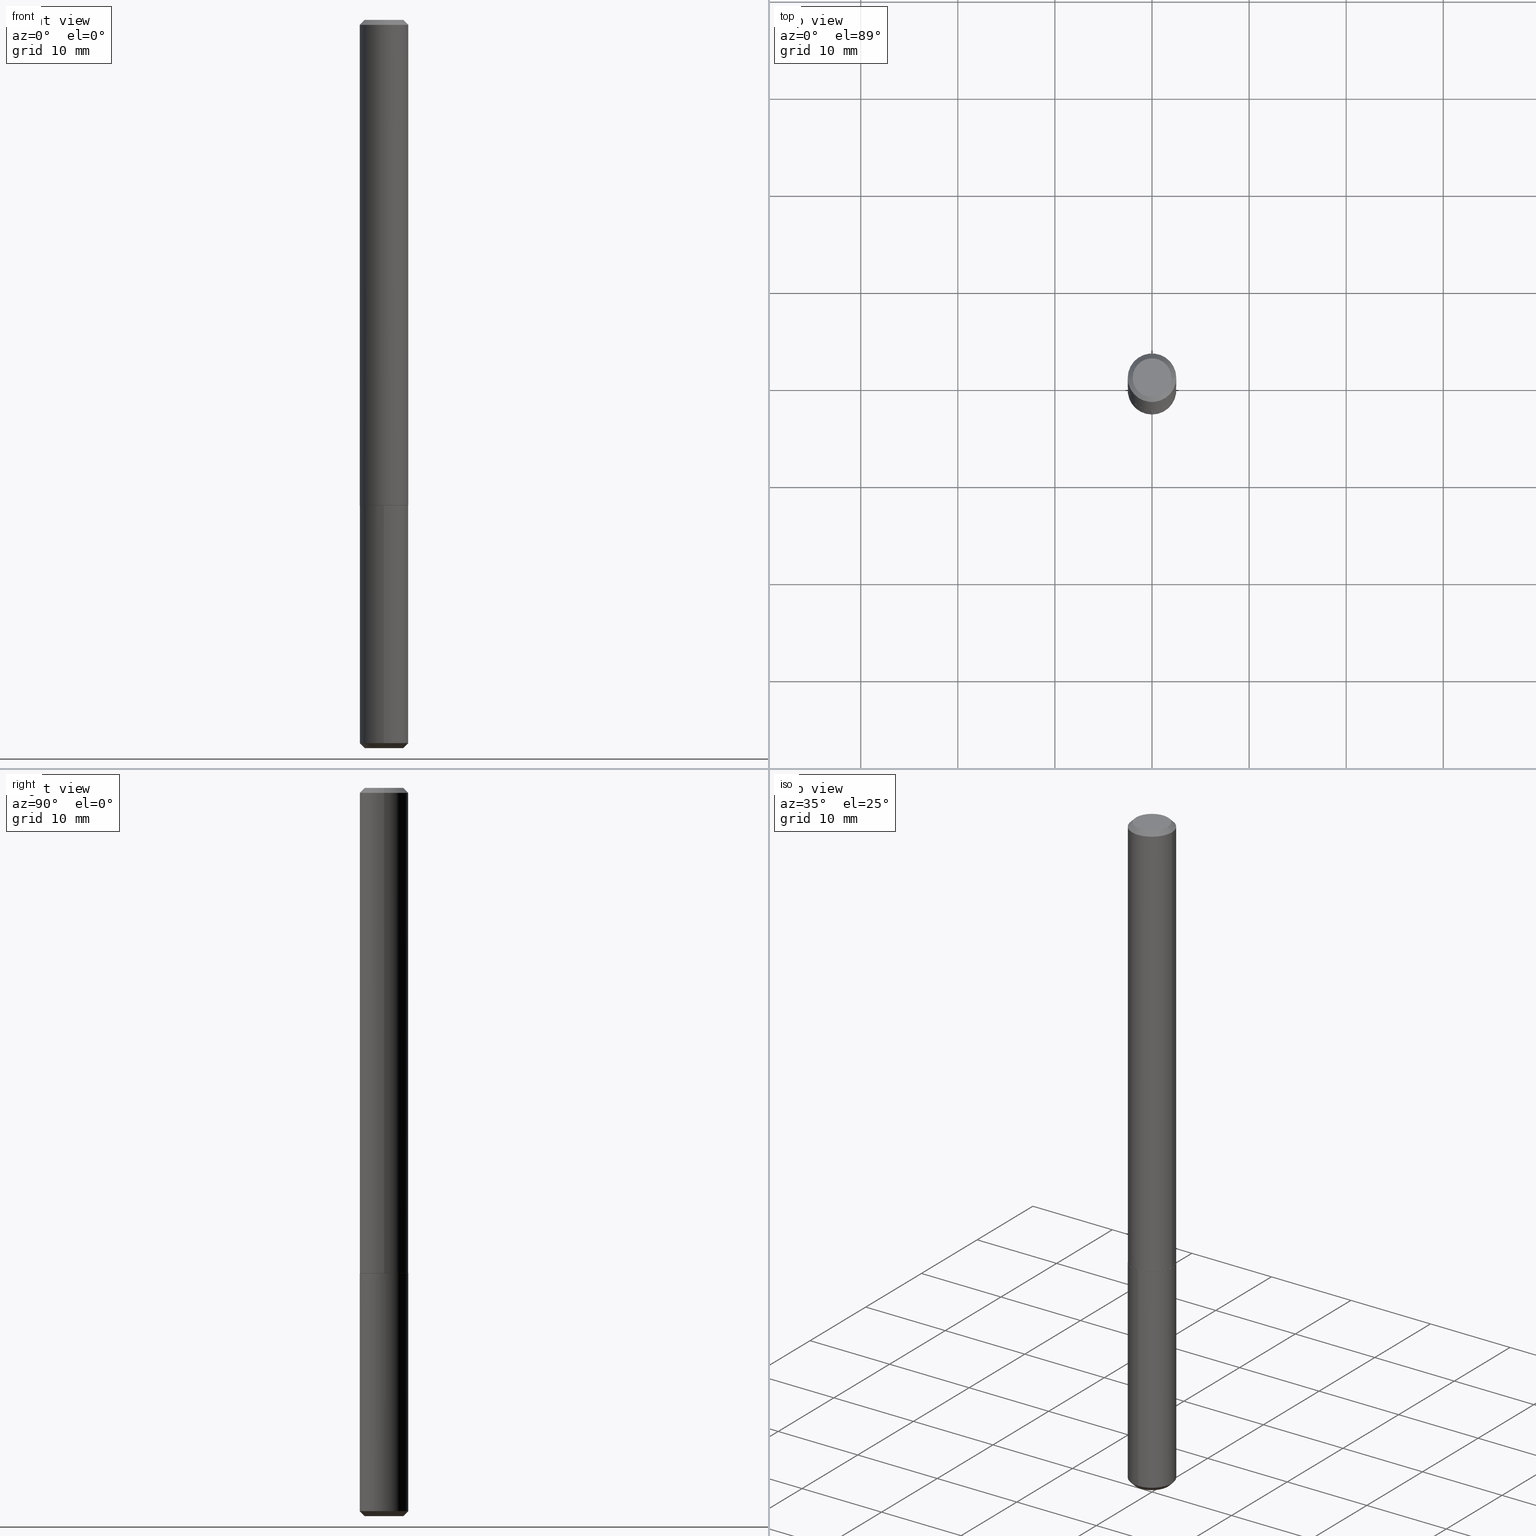
[diagram: canonical four-view strip — front | top / right | iso, engineering-drawing reading convention]
A machine part, canonical four-view strip (front | top / right | iso — engineering-drawing reading convention). The complete STEP part file that produces these views, byte-faithful:
ISO-10303-21;
HEADER;
FILE_DESCRIPTION (( 'STEP AP203' ),
    '1' );
FILE_NAME ('81017.STEP',
    '2024-04-19T13:36:24',
    ( '' ),
    ( '' ),
    'SwSTEP 2.0',
    'SolidWorks 2023',
    '' );
FILE_SCHEMA (( 'CONFIG_CONTROL_DESIGN' ));
ENDSEC;

DATA;
#1 = CALENDAR_DATE ( 2024, 19, 4 ) ;
#2 = LINE ( 'NONE', #98, #306 ) ;
#3 = CALENDAR_DATE ( 2024, 19, 4 ) ;
#4 = DIRECTION ( 'NONE',  ( -2.445360249500017247E-29, 3.491636798194899149E-15, 1.000000000000000000 ) ) ;
#5 = AXIS2_PLACEMENT_3D ( 'NONE', #352, #166, #332 ) ;
#6 = ADVANCED_FACE ( 'NONE', ( #128 ), #313, .T. ) ;
#7 = ORIENTED_EDGE ( 'NONE', *, *, #136, .F. ) ;
#8 = DIRECTION ( 'NONE',  ( 1.000000000000000000, -6.982962677686268288E-15, 0.000000000000000000 ) ) ;
#9 = CARTESIAN_POINT ( 'NONE',  ( -0.09844999999999999585, 6.176430488413494591E-16, -0.02000000000000014960 ) ) ;
#10 = CARTESIAN_POINT ( 'NONE',  ( 2.934938834991149716E-47, -4.190314816979048378E-33, -1.200153863164410111E-18 ) ) ;
#11 = DIRECTION ( 'NONE',  ( -2.445360249500017527E-29, 3.491636798194899149E-15, 1.000000000000000000 ) ) ;
#12 = CARTESIAN_POINT ( 'NONE',  ( -0.09795000000000038398, -6.174355178661599350E-15, -1.968499999999999694 ) ) ;
#13 = VERTEX_POINT ( 'NONE', #63 ) ;
#14 = CARTESIAN_POINT ( 'NONE',  ( -5.478134220644152620E-16, -0.07845000000001030316, -2.952799999999998981 ) ) ;
#15 = DIRECTION ( 'NONE',  ( -2.445360249500017527E-29, 3.491636798194899149E-15, 1.000000000000000000 ) ) ;
#16 = VERTEX_POINT ( 'NONE', #132 ) ;
#17 = CALENDAR_DATE ( 2024, 19, 4 ) ;
#18 = EDGE_CURVE ( 'NONE', #194, #138, #181, .T. ) ;
#19 = DIRECTION ( 'NONE',  ( -2.445360249500017527E-29, 3.491636798194899149E-15, 1.000000000000000000 ) ) ;
#20 = DIRECTION ( 'NONE',  ( 2.445360249500016966E-29, -3.491636798194899149E-15, -1.000000000000000000 ) ) ;
#21 = AXIS2_PLACEMENT_3D ( 'NONE', #336, #179, #147 ) ;
#22 = EDGE_CURVE ( 'NONE', #101, #322, #2, .T. ) ;
#23 = CONICAL_SURFACE ( 'NONE', #310, 0.09845000000000023177, 0.7853981633973970977 ) ;
#24 = CARTESIAN_POINT ( 'NONE',  ( 0.09845000000000023177, -7.558707950461525130E-15, -1.967999999999999972 ) ) ;
#25 = AXIS2_PLACEMENT_3D ( 'NONE', #35, #395, #390 ) ;
#26 = AXIS2_PLACEMENT_3D ( 'NONE', #140, #347, #325 ) ;
#27 = CARTESIAN_POINT ( 'NONE',  ( 7.220873438558306981E-29, -1.030979911597597060E-14, -2.952799999999999869 ) ) ;
#28 = ORIENTED_EDGE ( 'NONE', *, *, #91, .F. ) ;
#29 = APPROVAL ( #318, 'UNSPECIFIED' ) ;
#30 = AXIS2_PLACEMENT_3D ( 'NONE', #256, #363, #109 ) ;
#31 = ORIENTED_EDGE ( 'NONE', *, *, #22, .F. ) ;
#32 = SHAPE_DEFINITION_REPRESENTATION ( #354, #377 ) ;
#33 = APPROVAL_ROLE ( '' ) ;
#34 = CARTESIAN_POINT ( 'NONE',  ( 1.467469417495574858E-47, -2.095157408489524189E-33, -6.000769315822050554E-19 ) ) ;
#35 = CARTESIAN_POINT ( 'NONE',  ( 0.000000000000000000, 0.000000000000000000, 0.000000000000000000 ) ) ;
#36 = ORIENTED_EDGE ( 'NONE', *, *, #38, .F. ) ;
#37 = CONICAL_SURFACE ( 'NONE', #96, 0.09844999999999999585, 0.7853981633974447263 ) ;
#38 = EDGE_CURVE ( 'NONE', #393, #216, #82, .T. ) ;
#39 = DIRECTION ( 'NONE',  ( -2.445468806185136597E-29, 3.491481338843145583E-15, 1.000000000000000000 ) ) ;
#40 = ORIENTED_EDGE ( 'NONE', *, *, #121, .F. ) ;
#41 = CARTESIAN_POINT ( 'NONE',  ( 7.171966233568306776E-29, -1.023996638001207320E-14, -2.932799999999999851 ) ) ;
#42 = CARTESIAN_POINT ( 'NONE',  ( 4.813905344975440714E-29, -6.872981015512730918E-15, -1.968499999999999694 ) ) ;
#43 = PLANE ( 'NONE',  #105 ) ;
#44 = ORIENTED_EDGE ( 'NONE', *, *, #324, .F. ) ;
#45 = CARTESIAN_POINT ( 'NONE',  ( 6.995293233558916717E-16, 0.09844999999998994833, -2.932800000000000296 ) ) ;
#46 = FACE_OUTER_BOUND ( 'NONE', #389, .T. ) ;
#47 = EDGE_CURVE ( 'NONE', #16, #59, #300, .T. ) ;
#48 = COORDINATED_UNIVERSAL_TIME_OFFSET ( 5, 0, .BEHIND. ) ;
#49 = CIRCLE ( 'NONE', #334, 0.09844999999999999585 ) ;
#50 = CC_DESIGN_SECURITY_CLASSIFICATION ( #174, ( #232 ) ) ;
#51 = CALENDAR_DATE ( 2024, 19, 4 ) ;
#52 = EDGE_CURVE ( 'NONE', #342, #216, #221, .T. ) ;
#53 = AXIS2_PLACEMENT_3D ( 'NONE', #297, #137, #376 ) ;
#54 = LOCAL_TIME ( 9, 36, 24.00000000000000000, #87 ) ;
#55 = DIRECTION ( 'NONE',  ( -6.982962677686265922E-15, -1.000000000000000000, 3.491636798194899149E-15 ) ) ;
#56 = LOCAL_TIME ( 9, 36, 24.00000000000000000, #190 ) ;
#57 = ORIENTED_EDGE ( 'NONE', *, *, #52, .T. ) ;
#58 = EDGE_CURVE ( 'NONE', #138, #120, #185, .T. ) ;
#59 = VERTEX_POINT ( 'NONE', #307 ) ;
#60 = DATE_AND_TIME ( #288, #56 ) ;
#61 = CONICAL_SURFACE ( 'NONE', #86, 0.09844999999999999585, 0.7853981633974538301 ) ;
#62 = APPROVAL_PERSON_ORGANIZATION ( #222, #29, #33 ) ;
#63 = CARTESIAN_POINT ( 'NONE',  ( -6.874726756181396890E-16, -0.09845000000001002949, -2.932799999999999407 ) ) ;
#64 = SECURITY_CLASSIFICATION_LEVEL ( 'unclassified' ) ;
#65 =( LENGTH_UNIT ( ) NAMED_UNIT ( * ) SI_UNIT ( $, .METRE. ) );
#66 = ORIENTED_EDGE ( 'NONE', *, *, #129, .T. ) ;
#67 = APPROVAL_DATE_TIME ( #270, #182 ) ;
#68 = ORIENTED_EDGE ( 'NONE', *, *, #210, .T. ) ;
#69 = AXIS2_PLACEMENT_3D ( 'NONE', #27, #184, #189 ) ;
#70 = CARTESIAN_POINT ( 'NONE',  ( 7.171966233568306776E-29, -1.023996638001207320E-14, -2.932799999999999851 ) ) ;
#71 = FACE_OUTER_BOUND ( 'NONE', #227, .T. ) ;
#72 = CARTESIAN_POINT ( 'NONE',  ( 0.09795000000000038398, -7.556962209792104416E-15, -1.968499999999999694 ) ) ;
#73 = EDGE_LOOP ( 'NONE', ( #326, #125, #66, #236 ) ) ;
#74 = APPROVAL_ROLE ( '' ) ;
#75 = FACE_OUTER_BOUND ( 'NONE', #206, .T. ) ;
#76 = CC_DESIGN_PERSON_AND_ORGANIZATION_ASSIGNMENT ( #286, #346, ( #174 ) ) ;
#77 = FACE_OUTER_BOUND ( 'NONE', #145, .T. ) ;
#78 = CARTESIAN_POINT ( 'NONE',  ( -0.07844999999999999196, 5.827282354529185989E-16, -1.200153863168363275E-18 ) ) ;
#79 = APPROVAL_STATUS ( 'not_yet_approved' ) ;
#80 = FACE_OUTER_BOUND ( 'NONE', #351, .T. ) ;
#81 = APPROVAL_DATE_TIME ( #278, #291 ) ;
#82 = LINE ( 'NONE', #9, #357 ) ;
#83 = VECTOR ( 'NONE', #226, 39.37007874015748143 ) ;
#84 = ORGANIZATION ( 'UNSPECIFIED', 'UNSPECIFIED', '' ) ;
#85 = DIRECTION ( 'NONE',  ( 2.445468806185136597E-29, -3.491481338843145583E-15, -1.000000000000000000 ) ) ;
#86 = AXIS2_PLACEMENT_3D ( 'NONE', #41, #315, #392 ) ;
#87 = COORDINATED_UNIVERSAL_TIME_OFFSET ( 5, 0, .BEHIND. ) ;
#88 = EDGE_CURVE ( 'NONE', #100, #92, #247, .T. ) ;
#89 = AXIS2_PLACEMENT_3D ( 'NONE', #114, #11, #244 ) ;
#90 = EDGE_LOOP ( 'NONE', ( #126, #289, #401, #387 ) ) ;
#91 = EDGE_CURVE ( 'NONE', #138, #194, #130, .T. ) ;
#92 = VERTEX_POINT ( 'NONE', #231 ) ;
#93 = DATE_TIME_ROLE ( 'creation_date' ) ;
#94 = ORIENTED_EDGE ( 'NONE', *, *, #18, .T. ) ;
#95 = PERSON_AND_ORGANIZATION ( #106, #84 ) ;
#96 = AXIS2_PLACEMENT_3D ( 'NONE', #399, #102, #203 ) ;
#97 = EDGE_LOOP ( 'NONE', ( #122, #7, #281, #110 ) ) ;
#98 = CARTESIAN_POINT ( 'NONE',  ( -0.09845000000000023177, -6.171705951487488938E-15, -1.967999999999999972 ) ) ;
#99 =( NAMED_UNIT ( * ) PLANE_ANGLE_UNIT ( ) SI_UNIT ( $, .RADIAN. ) );
#100 = VERTEX_POINT ( 'NONE', #72 ) ;
#101 = VERTEX_POINT ( 'NONE', #12 ) ;
#102 = DIRECTION ( 'NONE',  ( 2.445468806185136597E-29, -3.491481338843145583E-15, -1.000000000000000000 ) ) ;
#103 = DIRECTION ( 'NONE',  ( 2.438088387897960049E-29, -3.491481338843145188E-15, -1.000000000000000000 ) ) ;
#104 = VECTOR ( 'NONE', #271, 39.37007874015748143 ) ;
#105 = AXIS2_PLACEMENT_3D ( 'NONE', #34, #103, #350 ) ;
#106 = PERSON ( 'UNSPECIFIED', 'UNSPECIFIED', 'UNSPECIFIED', ('UNSPECIFIED'), ('UNSPECIFIED'), ('UNSPECIFIED') ) ;
#107 = CC_DESIGN_DATE_AND_TIME_ASSIGNMENT ( #252, #93, ( #372 ) ) ;
#108 = CARTESIAN_POINT ( 'NONE',  ( 0.07844999999999999196, -6.417258612913236232E-16, -1.200153863160251258E-18 ) ) ;
#109 = DIRECTION ( 'NONE',  ( 1.000000000000000000, -6.982962677686268288E-15, 0.000000000000000000 ) ) ;
#110 = ORIENTED_EDGE ( 'NONE', *, *, #304, .T. ) ;
#111 = CARTESIAN_POINT ( 'NONE',  ( 0.000000000000000000, 0.000000000000000000, 0.000000000000000000 ) ) ;
#112 = DIRECTION ( 'NONE',  ( -2.438088387897960049E-29, 3.491481338843145188E-15, 1.000000000000000000 ) ) ;
#113 = APPROVAL_PERSON_ORGANIZATION ( #402, #182, #74 ) ;
#114 = CARTESIAN_POINT ( 'NONE',  ( 7.171966233568306776E-29, -1.023996638001207320E-14, -2.932799999999999851 ) ) ;
#115 = EDGE_CURVE ( 'NONE', #322, #216, #268, .T. ) ;
#116 = CARTESIAN_POINT ( 'NONE',  ( 4.813905344975440714E-29, -6.872981015512730918E-15, -1.968499999999999694 ) ) ;
#117 = ADVANCED_FACE ( 'NONE', ( #80 ), #240, .F. ) ;
#118 = AXIS2_PLACEMENT_3D ( 'NONE', #411, #250, #343 ) ;
#119 = EDGE_LOOP ( 'NONE', ( #253, #224, #398, #192 ) ) ;
#120 = VERTEX_POINT ( 'NONE', #45 ) ;
#121 = EDGE_CURVE ( 'NONE', #92, #342, #148, .T. ) ;
#122 = ORIENTED_EDGE ( 'NONE', *, *, #280, .F. ) ;
#123 = EDGE_LOOP ( 'NONE', ( #94, #331, #301, #198 ) ) ;
#124 = ORIENTED_EDGE ( 'NONE', *, *, #136, .T. ) ;
#125 = ORIENTED_EDGE ( 'NONE', *, *, #91, .T. ) ;
#126 = ORIENTED_EDGE ( 'NONE', *, *, #259, .F. ) ;
#127 = PERSON_AND_ORGANIZATION ( #106, #84 ) ;
#128 = FACE_OUTER_BOUND ( 'NONE', #169, .T. ) ;
#129 = EDGE_CURVE ( 'NONE', #194, #13, #139, .T. ) ;
#130 = CIRCLE ( 'NONE', #53, 0.07844999999999999196 ) ;
#131 = VERTEX_POINT ( 'NONE', #108 ) ;
#132 = CARTESIAN_POINT ( 'NONE',  ( 6.995293233558903898E-16, 0.09844999999999312634, -1.968500000000000139 ) ) ;
#133 = DIRECTION ( 'NONE',  ( -2.445360249500017527E-29, 3.491636798194899149E-15, 1.000000000000000000 ) ) ;
#134 = ORIENTED_EDGE ( 'NONE', *, *, #340, .T. ) ;
#135 = CARTESIAN_POINT ( 'NONE',  ( 0.09844999999999999585, -7.573023023950763513E-16, -0.02000000000000014960 ) ) ;
#136 = EDGE_CURVE ( 'NONE', #393, #131, #309, .T. ) ;
#137 = DIRECTION ( 'NONE',  ( -2.445360249500017527E-29, 3.491636798194899149E-15, 1.000000000000000000 ) ) ;
#138 = VERTEX_POINT ( 'NONE', #323 ) ;
#139 = LINE ( 'NONE', #333, #292 ) ;
#140 = CARTESIAN_POINT ( 'NONE',  ( 4.813905344975440714E-29, -6.872981015512730918E-15, -1.968499999999999694 ) ) ;
#141 = MANIFOLD_SOLID_BREP ( 'Body-Move/Copy2[1]', #172 ) ;
#142 = ORIENTED_EDGE ( 'NONE', *, *, #409, .F. ) ;
#143 = DIMENSIONAL_EXPONENTS ( 1.000000000000000000, 0.000000000000000000, 0.000000000000000000, 0.000000000000000000, 0.000000000000000000, 0.000000000000000000, 0.000000000000000000 ) ;
#144 = DIRECTION ( 'NONE',  ( -1.000000000000000000, 6.982962677686266711E-15, 0.000000000000000000 ) ) ;
#145 = EDGE_LOOP ( 'NONE', ( #287, #165, #57, #36 ) ) ;
#146 = PERSON_AND_ORGANIZATION_ROLE ( 'creator' ) ;
#147 = DIRECTION ( 'NONE',  ( 1.000000000000000000, -6.982962677686266711E-15, 0.000000000000000000 ) ) ;
#148 = LINE ( 'NONE', #368, #104 ) ;
#149 = CC_DESIGN_PERSON_AND_ORGANIZATION_ASSIGNMENT ( #302, #173, ( #218 ) ) ;
#150 = CIRCLE ( 'NONE', #21, 0.09844999999999999585 ) ;
#151 = CARTESIAN_POINT ( 'NONE',  ( 4.812682610572349033E-29, -6.871235274843309415E-15, -1.967999999999999972 ) ) ;
#152 = CC_DESIGN_PERSON_AND_ORGANIZATION_ASSIGNMENT ( #127, #255, ( #232 ) ) ;
#153 = CIRCLE ( 'NONE', #89, 0.09844999999999999585 ) ;
#154 = ORIENTED_EDGE ( 'NONE', *, *, #259, .T. ) ;
#155 = AXIS2_PLACEMENT_3D ( 'NONE', #408, #112, #243 ) ;
#156 = CC_DESIGN_APPROVAL ( #182, ( #372 ) ) ;
#157 = DATE_AND_TIME ( #3, #380 ) ;
#158 = ADVANCED_FACE ( 'NONE', ( #328 ), #337, .T. ) ;
#159 = PERSON_AND_ORGANIZATION_ROLE ( 'design_supplier' ) ;
#160 = ORIENTED_EDGE ( 'NONE', *, *, #115, .T. ) ;
#161 = AXIS2_PLACEMENT_3D ( 'NONE', #10, #365, #170 ) ;
#162 = CIRCLE ( 'NONE', #396, 0.09795000000000038398 ) ;
#163 = ADVANCED_FACE ( 'NONE', ( #75 ), #175, .F. ) ;
#164 = DIRECTION ( 'NONE',  ( 1.000000000000000000, -6.982962677686271444E-15, 0.000000000000000000 ) ) ;
#165 = ORIENTED_EDGE ( 'NONE', *, *, #280, .T. ) ;
#166 = DIRECTION ( 'NONE',  ( 0.000000000000000000, 0.000000000000000000, 1.000000000000000000 ) ) ;
#167 = DIRECTION ( 'NONE',  ( -2.445468806185136597E-29, 3.491481338843145583E-15, 1.000000000000000000 ) ) ;
#168 = DIRECTION ( 'NONE',  ( -2.445360249500017527E-29, 3.491636798194899149E-15, 1.000000000000000000 ) ) ;
#169 = EDGE_LOOP ( 'NONE', ( #201, #160, #321, #40 ) ) ;
#170 = DIRECTION ( 'NONE',  ( 1.000000000000000000, -6.982962677686266711E-15, 4.876126812019093667E-29 ) ) ;
#171 = ORIENTED_EDGE ( 'NONE', *, *, #324, .T. ) ;
#172 = CLOSED_SHELL ( 'NONE', ( #188, #196, #283, #397, #117, #320 ) ) ;
#173 = PERSON_AND_ORGANIZATION_ROLE ( 'design_owner' ) ;
#174 = SECURITY_CLASSIFICATION ( '', '', #64 ) ;
#175 = PLANE ( 'NONE',  #155 ) ;
#176 = APPROVAL_STATUS ( 'not_yet_approved' ) ;
#177 = DIRECTION ( 'NONE',  ( 6.982962677686265922E-15, 1.000000000000000000, -3.491636798194899149E-15 ) ) ;
#178 = CARTESIAN_POINT ( 'NONE',  ( 2.934938834991149716E-47, -4.190314816979048378E-33, -1.200153863164410111E-18 ) ) ;
#179 = DIRECTION ( 'NONE',  ( -2.445468806185136597E-29, 3.491481338843145583E-15, 1.000000000000000000 ) ) ;
#180 = CLOSED_SHELL ( 'NONE', ( #245, #6, #356, #163, #308, #207, #158, #382 ) ) ;
#181 = CIRCLE ( 'NONE', #69, 0.07844999999999999196 ) ;
#182 = APPROVAL ( #79, 'UNSPECIFIED' ) ;
#183 = AXIS2_PLACEMENT_3D ( 'NONE', #371, #209, #305 ) ;
#184 = DIRECTION ( 'NONE',  ( -2.445360249500017527E-29, 3.491636798194899149E-15, 1.000000000000000000 ) ) ;
#185 = LINE ( 'NONE', #386, #412 ) ;
#186 = CIRCLE ( 'NONE', #248, 0.09844999999999999585 ) ;
#187 = COORDINATED_UNIVERSAL_TIME_OFFSET ( 5, 0, .BEHIND. ) ;
#188 = ADVANCED_FACE ( 'NONE', ( #373 ), #202, .T. ) ;
#189 = DIRECTION ( 'NONE',  ( -6.982962677686266711E-15, -1.000000000000000000, 6.964558301247325586E-15 ) ) ;
#190 = COORDINATED_UNIVERSAL_TIME_OFFSET ( 5, 0, .BEHIND. ) ;
#191 =( CONVERSION_BASED_UNIT ( 'INCH', #400 ) LENGTH_UNIT ( ) NAMED_UNIT ( #143 ) );
#192 = ORIENTED_EDGE ( 'NONE', *, *, #304, .F. ) ;
#193 = UNCERTAINTY_MEASURE_WITH_UNIT (LENGTH_MEASURE( 1.000000000000000082E-05 ), #191, 'distance_accuracy_value', 'NONE');
#194 = VERTEX_POINT ( 'NONE', #14 ) ;
#195 = DIRECTION ( 'NONE',  ( -6.982962677686265922E-15, -1.000000000000000000, 2.774858297271979165E-15 ) ) ;
#196 = ADVANCED_FACE ( 'NONE', ( #199 ), #61, .T. ) ;
#197 = AXIS2_PLACEMENT_3D ( 'NONE', #366, #19, #205 ) ;
#198 = ORIENTED_EDGE ( 'NONE', *, *, #129, .F. ) ;
#199 = FACE_OUTER_BOUND ( 'NONE', #123, .T. ) ;
#200 = CARTESIAN_POINT ( 'NONE',  ( 4.813905344975440714E-29, -6.872981015512730918E-15, -1.968499999999999694 ) ) ;
#201 = ORIENTED_EDGE ( 'NONE', *, *, #348, .T. ) ;
#202 = CYLINDRICAL_SURFACE ( 'NONE', #267, 0.09844999999999999585 ) ;
#203 = DIRECTION ( 'NONE',  ( -1.000000000000000000, 6.982962677686266711E-15, 0.000000000000000000 ) ) ;
#204 = CARTESIAN_POINT ( 'NONE',  ( -6.874726756181646368E-16, -0.09845000000000687923, -1.968499999999999472 ) ) ;
#205 = DIRECTION ( 'NONE',  ( -6.982962677686265922E-15, -1.000000000000000000, 5.549716594543958330E-15 ) ) ;
#206 = EDGE_LOOP ( 'NONE', ( #44, #257 ) ) ;
#207 = ADVANCED_FACE ( 'NONE', ( #233 ), #229, .T. ) ;
#208 = AXIS2_PLACEMENT_3D ( 'NONE', #230, #133, #298 ) ;
#209 = DIRECTION ( 'NONE',  ( -2.445468806185136597E-29, 3.491481338843145583E-15, 1.000000000000000000 ) ) ;
#210 = EDGE_CURVE ( 'NONE', #59, #16, #186, .T. ) ;
#211 = PERSON_AND_ORGANIZATION ( #106, #84 ) ;
#212 = CARTESIAN_POINT ( 'NONE',  ( 7.220980290903470182E-29, -1.030964609733603853E-14, -2.952799999999999869 ) ) ;
#213 = CC_DESIGN_PERSON_AND_ORGANIZATION_ASSIGNMENT ( #327, #146, ( #372 ) ) ;
#214 = AXIS2_PLACEMENT_3D ( 'NONE', #111, #262, #403 ) ;
#215 = ORIENTED_EDGE ( 'NONE', *, *, #348, .F. ) ;
#216 = VERTEX_POINT ( 'NONE', #239 ) ;
#217 = DIRECTION ( 'NONE',  ( 5.024295867788090000E-15, 0.7071067811865539010, 0.7071067811865411334 ) ) ;
#218 = PRODUCT ( '81017', '81017', '', ( #237 ) ) ;
#219 = EDGE_LOOP ( 'NONE', ( #31, #134, #312, #254 ) ) ;
#220 = APPROVAL_DATE_TIME ( #157, #29 ) ;
#221 = CIRCLE ( 'NONE', #118, 0.09844999999999999585 ) ;
#222 = PERSON_AND_ORGANIZATION ( #106, #84 ) ;
#223 =( GEOMETRIC_REPRESENTATION_CONTEXT ( 3 ) GLOBAL_UNCERTAINTY_ASSIGNED_CONTEXT ( ( #193 ) ) GLOBAL_UNIT_ASSIGNED_CONTEXT ( ( #191, #99, #359 ) ) REPRESENTATION_CONTEXT ( 'NONE', 'WORKASPACE' ) );
#224 = ORIENTED_EDGE ( 'NONE', *, *, #314, .T. ) ;
#225 = ORIENTED_EDGE ( 'NONE', *, *, #47, .T. ) ;
#226 = DIRECTION ( 'NONE',  ( 0.7071067811865112684, -2.468850131081876830E-15, 0.7071067811865837660 ) ) ;
#227 = EDGE_LOOP ( 'NONE', ( #124, #383 ) ) ;
#228 = DIRECTION ( 'NONE',  ( -2.445360249500017527E-29, 3.491636798194899149E-15, 1.000000000000000000 ) ) ;
#229 = CYLINDRICAL_SURFACE ( 'NONE', #214, 0.09845000000000010687 ) ;
#230 = CARTESIAN_POINT ( 'NONE',  ( 4.813905344975440714E-29, -6.872981015512730918E-15, -1.968499999999999694 ) ) ;
#231 = CARTESIAN_POINT ( 'NONE',  ( 0.09845000000000023177, -7.558707950461525130E-15, -1.967999999999999972 ) ) ;
#232 = PRODUCT_DEFINITION_FORMATION_WITH_SPECIFIED_SOURCE ( 'ANY', '', #218, .NOT_KNOWN. ) ;
#233 = FACE_OUTER_BOUND ( 'NONE', #119, .T. ) ;
#234 = LINE ( 'NONE', #204, #338 ) ;
#235 = CARTESIAN_POINT ( 'NONE',  ( 0.09844999999999999585, -7.452456546574707023E-16, -0.02000000000000014960 ) ) ;
#236 = ORIENTED_EDGE ( 'NONE', *, *, #272, .F. ) ;
#237 = MECHANICAL_CONTEXT ( 'NONE', #317, 'mechanical' ) ;
#238 = EDGE_CURVE ( 'NONE', #131, #393, #344, .T. ) ;
#239 = CARTESIAN_POINT ( 'NONE',  ( -0.09844999999999999585, -2.771003127454265485E-15, -0.02000000000000014960 ) ) ;
#240 = PLANE ( 'NONE',  #284 ) ;
#241 = DIRECTION ( 'NONE',  ( 0.7071067811865450192, -7.319954787623246579E-15, -0.7071067811865500152 ) ) ;
#242 = LOCAL_TIME ( 9, 36, 24.00000000000000000, #187 ) ;
#243 = DIRECTION ( 'NONE',  ( 1.000000000000000000, -6.982962677686265922E-15, 4.876176775795935793E-29 ) ) ;
#244 = DIRECTION ( 'NONE',  ( -6.982962677686265922E-15, -1.000000000000000000, 5.549716594543958330E-15 ) ) ;
#245 = ADVANCED_FACE ( 'NONE', ( #77 ), #37, .T. ) ;
#246 = DIRECTION ( 'NONE',  ( -2.445360249500017527E-29, 3.491636798194899149E-15, 1.000000000000000000 ) ) ;
#247 = LINE ( 'NONE', #24, #83 ) ;
#248 = AXIS2_PLACEMENT_3D ( 'NONE', #42, #168, #358 ) ;
#249 = CIRCLE ( 'NONE', #30, 0.09845000000000023177 ) ;
#250 = DIRECTION ( 'NONE',  ( -2.445468806185136597E-29, 3.491481338843145583E-15, 1.000000000000000000 ) ) ;
#251 = EDGE_CURVE ( 'NONE', #13, #120, #49, .T. ) ;
#252 = DATE_AND_TIME ( #1, #242 ) ;
#253 = ORIENTED_EDGE ( 'NONE', *, *, #115, .F. ) ;
#254 = ORIENTED_EDGE ( 'NONE', *, *, #314, .F. ) ;
#255 = PERSON_AND_ORGANIZATION_ROLE ( 'creator' ) ;
#256 = CARTESIAN_POINT ( 'NONE',  ( 4.812682610572349033E-29, -6.871235274843309415E-15, -1.967999999999999972 ) ) ;
#257 = ORIENTED_EDGE ( 'NONE', *, *, #340, .F. ) ;
#258 = CYLINDRICAL_SURFACE ( 'NONE', #208, 0.09844999999999999585 ) ;
#259 = EDGE_CURVE ( 'NONE', #120, #16, #273, .T. ) ;
#260 = ORIENTED_EDGE ( 'NONE', *, *, #22, .T. ) ;
#261 = APPLICATION_PROTOCOL_DEFINITION ( 'international standard', 'config_control_design', 1994, #317 ) ;
#262 = DIRECTION ( 'NONE',  ( -2.445468806185136597E-29, 3.491481338843145583E-15, 1.000000000000000000 ) ) ;
#263 = CARTESIAN_POINT ( 'NONE',  ( -0.09845000000000023177, -6.171705951487488938E-15, -1.967999999999999972 ) ) ;
#264 = APPLICATION_PROTOCOL_DEFINITION ( 'international standard', 'config_control_design', 1994, #279 ) ;
#265 = DIRECTION ( 'NONE',  ( -0.7071067811865450192, 2.468850131082230634E-15, -0.7071067811865500152 ) ) ;
#266 = CARTESIAN_POINT ( 'NONE',  ( 4.812682610572349033E-29, -6.871235274843309415E-15, -1.967999999999999972 ) ) ;
#267 = AXIS2_PLACEMENT_3D ( 'NONE', #116, #246, #375 ) ;
#268 = LINE ( 'NONE', #269, #379 ) ;
#269 = CARTESIAN_POINT ( 'NONE',  ( -0.09845000000000010687, 6.995293233558193923E-16, -4.842691596355960348E-30 ) ) ;
#270 = DATE_AND_TIME ( #17, #370 ) ;
#271 = DIRECTION ( 'NONE',  ( -2.445468806185136877E-29, 3.491481338843145188E-15, 1.000000000000000000 ) ) ;
#272 = EDGE_CURVE ( 'NONE', #120, #13, #153, .T. ) ;
#273 = LINE ( 'NONE', #303, #274 ) ;
#274 = VECTOR ( 'NONE', #360, 39.37007874015748143 ) ;
#275 = CARTESIAN_POINT ( 'NONE',  ( 4.890937612370309067E-31, -6.982962677686343378E-17, -0.02000000000000014960 ) ) ;
#276 = DIRECTION ( 'NONE',  ( -2.445468806185136597E-29, 3.491481338843145583E-15, 1.000000000000000000 ) ) ;
#277 = MANIFOLD_SOLID_BREP ( 'Body-Move/Copy2[2]', #180 ) ;
#278 = DATE_AND_TIME ( #51, #54 ) ;
#279 = APPLICATION_CONTEXT ( 'configuration controlled 3d designs of mechanical parts and assemblies' ) ;
#280 = EDGE_CURVE ( 'NONE', #131, #342, #405, .T. ) ;
#281 = ORIENTED_EDGE ( 'NONE', *, *, #38, .T. ) ;
#282 = DIRECTION ( 'NONE',  ( -2.445360249500016966E-29, 3.491636798194899149E-15, 1.000000000000000000 ) ) ;
#283 = ADVANCED_FACE ( 'NONE', ( #364 ), #384, .T. ) ;
#284 = AXIS2_PLACEMENT_3D ( 'NONE', #362, #20, #177 ) ;
#285 = CIRCLE ( 'NONE', #345, 0.09845000000000023177 ) ;
#286 = PERSON_AND_ORGANIZATION ( #106, #84 ) ;
#287 = ORIENTED_EDGE ( 'NONE', *, *, #238, .F. ) ;
#288 = CALENDAR_DATE ( 2024, 19, 4 ) ;
#289 = ORIENTED_EDGE ( 'NONE', *, *, #272, .T. ) ;
#290 = DESIGN_CONTEXT ( 'detailed design', #279, 'design' ) ;
#291 = APPROVAL ( #176, 'UNSPECIFIED' ) ;
#292 = VECTOR ( 'NONE', #406, 39.37007874015748143 ) ;
#293 = APPROVAL_PERSON_ORGANIZATION ( #211, #291, #410 ) ;
#294 = DIRECTION ( 'NONE',  ( -2.445468806185136597E-29, 3.491481338843145583E-15, 1.000000000000000000 ) ) ;
#295 = EDGE_LOOP ( 'NONE', ( #171, #260, #215, #361 ) ) ;
#296 = DIRECTION ( 'NONE',  ( -2.445468806185136877E-29, 3.491481338843145188E-15, 1.000000000000000000 ) ) ;
#297 = CARTESIAN_POINT ( 'NONE',  ( 7.220873438558306981E-29, -1.030979911597597060E-14, -2.952799999999999869 ) ) ;
#298 = DIRECTION ( 'NONE',  ( -6.982962677686265922E-15, -1.000000000000000000, 2.774858297271979165E-15 ) ) ;
#299 = PRODUCT_RELATED_PRODUCT_CATEGORY ( 'detail', '', ( #218 ) ) ;
#300 = CIRCLE ( 'NONE', #316, 0.09844999999999999585 ) ;
#301 = ORIENTED_EDGE ( 'NONE', *, *, #251, .F. ) ;
#302 = PERSON_AND_ORGANIZATION ( #106, #84 ) ;
#303 = CARTESIAN_POINT ( 'NONE',  ( 6.995293233558666254E-16, 0.09844999999999311247, -1.968500000000000139 ) ) ;
#304 = EDGE_CURVE ( 'NONE', #216, #342, #150, .T. ) ;
#305 = DIRECTION ( 'NONE',  ( 1.000000000000000000, -6.982962677686268288E-15, 0.000000000000000000 ) ) ;
#306 = VECTOR ( 'NONE', #367, 39.37007874015748143 ) ;
#307 = CARTESIAN_POINT ( 'NONE',  ( -6.874726756181646368E-16, -0.09845000000000687923, -1.968499999999999472 ) ) ;
#308 = ADVANCED_FACE ( 'NONE', ( #374 ), #335, .T. ) ;
#309 = CIRCLE ( 'NONE', #369, 0.07844999999999999196 ) ;
#310 = AXIS2_PLACEMENT_3D ( 'NONE', #266, #294, #8 ) ;
#311 = PLANE ( 'NONE',  #385 ) ;
#312 = ORIENTED_EDGE ( 'NONE', *, *, #88, .T. ) ;
#313 = CYLINDRICAL_SURFACE ( 'NONE', #25, 0.09845000000000010687 ) ;
#314 = EDGE_CURVE ( 'NONE', #322, #92, #285, .T. ) ;
#315 = DIRECTION ( 'NONE',  ( -2.445360249500017527E-29, 3.491636798194899149E-15, 1.000000000000000000 ) ) ;
#316 = AXIS2_PLACEMENT_3D ( 'NONE', #353, #228, #195 ) ;
#317 = APPLICATION_CONTEXT ( 'configuration controlled 3d designs of mechanical parts and assemblies' ) ;
#318 = APPROVAL_STATUS ( 'not_yet_approved' ) ;
#319 = FACE_OUTER_BOUND ( 'NONE', #295, .T. ) ;
#320 = ADVANCED_FACE ( 'NONE', ( #46 ), #311, .F. ) ;
#321 = ORIENTED_EDGE ( 'NONE', *, *, #52, .F. ) ;
#322 = VERTEX_POINT ( 'NONE', #263 ) ;
#323 = CARTESIAN_POINT ( 'NONE',  ( 6.284750497798803081E-16, 0.07844999999998966689, -2.952800000000000313 ) ) ;
#324 = EDGE_CURVE ( 'NONE', #100, #101, #162, .T. ) ;
#325 = DIRECTION ( 'NONE',  ( 1.000000000000000000, -6.982962677686271444E-15, 0.000000000000000000 ) ) ;
#326 = ORIENTED_EDGE ( 'NONE', *, *, #58, .F. ) ;
#327 = PERSON_AND_ORGANIZATION ( #106, #84 ) ;
#328 = FACE_OUTER_BOUND ( 'NONE', #97, .T. ) ;
#329 = DIRECTION ( 'NONE',  ( -6.982962677686265922E-15, -1.000000000000000000, 5.549716594543958330E-15 ) ) ;
#330 = DIRECTION ( 'NONE',  ( 1.000000000000000000, -6.982962677686268288E-15, 0.000000000000000000 ) ) ;
#331 = ORIENTED_EDGE ( 'NONE', *, *, #58, .T. ) ;
#332 = DIRECTION ( 'NONE',  ( 1.000000000000000000, 0.000000000000000000, 0.000000000000000000 ) ) ;
#333 = CARTESIAN_POINT ( 'NONE',  ( -6.874726756181410695E-16, -0.09845000000001023766, -2.932799999999999407 ) ) ;
#334 = AXIS2_PLACEMENT_3D ( 'NONE', #70, #15, #329 ) ;
#335 = CONICAL_SURFACE ( 'NONE', #183, 0.09845000000000023177, 0.7853981633973970977 ) ;
#336 = CARTESIAN_POINT ( 'NONE',  ( 4.890937612370309067E-31, -6.982962677686343378E-17, -0.02000000000000014960 ) ) ;
#337 = CONICAL_SURFACE ( 'NONE', #339, 0.09844999999999999585, 0.7853981633974447263 ) ;
#338 = VECTOR ( 'NONE', #4, 39.37007874015748143 ) ;
#339 = AXIS2_PLACEMENT_3D ( 'NONE', #275, #85, #144 ) ;
#340 = EDGE_CURVE ( 'NONE', #101, #100, #415, .T. ) ;
#341 = CC_DESIGN_APPROVAL ( #291, ( #174 ) ) ;
#342 = VERTEX_POINT ( 'NONE', #135 ) ;
#343 = DIRECTION ( 'NONE',  ( 1.000000000000000000, -6.982962677686266711E-15, 0.000000000000000000 ) ) ;
#344 = CIRCLE ( 'NONE', #161, 0.07844999999999999196 ) ;
#345 = AXIS2_PLACEMENT_3D ( 'NONE', #151, #276, #330 ) ;
#346 = PERSON_AND_ORGANIZATION_ROLE ( 'classification_officer' ) ;
#347 = DIRECTION ( 'NONE',  ( -2.445468806185136597E-29, 3.491481338843145583E-15, 1.000000000000000000 ) ) ;
#348 = EDGE_CURVE ( 'NONE', #92, #322, #249, .T. ) ;
#349 = EDGE_LOOP ( 'NONE', ( #381, #154, #355, #142 ) ) ;
#350 = DIRECTION ( 'NONE',  ( -1.000000000000000000, 6.982962677686265922E-15, -4.876176775795935793E-29 ) ) ;
#351 = EDGE_LOOP ( 'NONE', ( #68, #225 ) ) ;
#352 = CARTESIAN_POINT ( 'NONE',  ( 0.000000000000000000, 0.000000000000000000, 0.000000000000000000 ) ) ;
#353 = CARTESIAN_POINT ( 'NONE',  ( 4.813905344975440714E-29, -6.872981015512730918E-15, -1.968499999999999694 ) ) ;
#354 = PRODUCT_DEFINITION_SHAPE ( 'NONE', 'NONE',  #372 ) ;
#355 = ORIENTED_EDGE ( 'NONE', *, *, #210, .F. ) ;
#356 = ADVANCED_FACE ( 'NONE', ( #319 ), #23, .T. ) ;
#357 = VECTOR ( 'NONE', #265, 39.37007874015748143 ) ;
#358 = DIRECTION ( 'NONE',  ( -6.982962677686265922E-15, -1.000000000000000000, 2.774858297271979165E-15 ) ) ;
#359 =( NAMED_UNIT ( * ) SI_UNIT ( $, .STERADIAN. ) SOLID_ANGLE_UNIT ( ) );
#360 = DIRECTION ( 'NONE',  ( -2.445360249500017247E-29, 3.491636798194899149E-15, 1.000000000000000000 ) ) ;
#361 = ORIENTED_EDGE ( 'NONE', *, *, #88, .F. ) ;
#362 = CARTESIAN_POINT ( 'NONE',  ( 4.813905344975440714E-29, -6.872981015512730918E-15, -1.968499999999999694 ) ) ;
#363 = DIRECTION ( 'NONE',  ( -2.445468806185136597E-29, 3.491481338843145583E-15, 1.000000000000000000 ) ) ;
#364 = FACE_OUTER_BOUND ( 'NONE', #73, .T. ) ;
#365 = DIRECTION ( 'NONE',  ( -2.445468806185136597E-29, 3.491481338843145583E-15, 1.000000000000000000 ) ) ;
#366 = CARTESIAN_POINT ( 'NONE',  ( 7.171966233568306776E-29, -1.023996638001207320E-14, -2.932799999999999851 ) ) ;
#367 = DIRECTION ( 'NONE',  ( -0.7071067811865112684, 7.493145998870223209E-15, 0.7071067811865837660 ) ) ;
#368 = CARTESIAN_POINT ( 'NONE',  ( 0.09845000000000010687, -6.874726756182137434E-16, 4.800596035771104119E-30 ) ) ;
#369 = AXIS2_PLACEMENT_3D ( 'NONE', #178, #167, #407 ) ;
#370 = LOCAL_TIME ( 9, 36, 24.00000000000000000, #48 ) ;
#371 = CARTESIAN_POINT ( 'NONE',  ( 4.812682610572349033E-29, -6.871235274843309415E-15, -1.967999999999999972 ) ) ;
#372 = PRODUCT_DEFINITION ( 'UNKNOWN', '', #232, #290 ) ;
#373 = FACE_OUTER_BOUND ( 'NONE', #349, .T. ) ;
#374 = FACE_OUTER_BOUND ( 'NONE', #219, .T. ) ;
#375 = DIRECTION ( 'NONE',  ( -6.982962677686265922E-15, -1.000000000000000000, 2.774858297271979165E-15 ) ) ;
#376 = DIRECTION ( 'NONE',  ( -6.982962677686266711E-15, -1.000000000000000000, 6.964558301247325586E-15 ) ) ;
#377 = ADVANCED_BREP_SHAPE_REPRESENTATION ( '81017', ( #141, #277, #5 ), #223 ) ;
#378 = CC_DESIGN_DATE_AND_TIME_ASSIGNMENT ( #60, #416, ( #174 ) ) ;
#379 = VECTOR ( 'NONE', #296, 39.37007874015748143 ) ;
#380 = LOCAL_TIME ( 9, 36, 24.00000000000000000, #388 ) ;
#381 = ORIENTED_EDGE ( 'NONE', *, *, #251, .T. ) ;
#382 = ADVANCED_FACE ( 'NONE', ( #71 ), #43, .F. ) ;
#383 = ORIENTED_EDGE ( 'NONE', *, *, #238, .T. ) ;
#384 = CONICAL_SURFACE ( 'NONE', #197, 0.09844999999999999585, 0.7853981633974538301 ) ;
#385 = AXIS2_PLACEMENT_3D ( 'NONE', #212, #282, #55 ) ;
#386 = CARTESIAN_POINT ( 'NONE',  ( 6.995293233558901926E-16, 0.09844999999998975404, -2.932800000000000296 ) ) ;
#387 = ORIENTED_EDGE ( 'NONE', *, *, #47, .F. ) ;
#388 = COORDINATED_UNIVERSAL_TIME_OFFSET ( 5, 0, .BEHIND. ) ;
#389 = EDGE_LOOP ( 'NONE', ( #413, #28 ) ) ;
#390 = DIRECTION ( 'NONE',  ( 1.000000000000000000, -6.982962677686267499E-15, 4.876176775795935793E-29 ) ) ;
#391 = CC_DESIGN_PERSON_AND_ORGANIZATION_ASSIGNMENT ( #95, #159, ( #232 ) ) ;
#392 = DIRECTION ( 'NONE',  ( -6.982962677686265922E-15, -1.000000000000000000, 5.549716594543958330E-15 ) ) ;
#393 = VERTEX_POINT ( 'NONE', #78 ) ;
#394 = VECTOR ( 'NONE', #241, 39.37007874015748143 ) ;
#395 = DIRECTION ( 'NONE',  ( -2.445468806185136597E-29, 3.491481338843145583E-15, 1.000000000000000000 ) ) ;
#396 = AXIS2_PLACEMENT_3D ( 'NONE', #200, #39, #164 ) ;
#397 = ADVANCED_FACE ( 'NONE', ( #404 ), #258, .T. ) ;
#398 = ORIENTED_EDGE ( 'NONE', *, *, #121, .T. ) ;
#399 = CARTESIAN_POINT ( 'NONE',  ( 4.890937612370309067E-31, -6.982962677686343378E-17, -0.02000000000000014960 ) ) ;
#400 = LENGTH_MEASURE_WITH_UNIT ( LENGTH_MEASURE( 0.02539999999999999897 ), #65 );
#401 = ORIENTED_EDGE ( 'NONE', *, *, #409, .T. ) ;
#402 = PERSON_AND_ORGANIZATION ( #106, #84 ) ;
#403 = DIRECTION ( 'NONE',  ( 1.000000000000000000, -6.982962677686267499E-15, 4.876176775795935793E-29 ) ) ;
#404 = FACE_OUTER_BOUND ( 'NONE', #90, .T. ) ;
#405 = LINE ( 'NONE', #235, #394 ) ;
#406 = DIRECTION ( 'NONE',  ( -4.937700262164574863E-15, -0.7071067811865490160, 0.7071067811865460184 ) ) ;
#407 = DIRECTION ( 'NONE',  ( 1.000000000000000000, -6.982962677686266711E-15, 4.876126812019093667E-29 ) ) ;
#408 = CARTESIAN_POINT ( 'NONE',  ( 4.813905344975440714E-29, -6.872981015512730918E-15, -1.968499999999999694 ) ) ;
#409 = EDGE_CURVE ( 'NONE', #13, #59, #234, .T. ) ;
#410 = APPROVAL_ROLE ( '' ) ;
#411 = CARTESIAN_POINT ( 'NONE',  ( 4.890937612370309067E-31, -6.982962677686343378E-17, -0.02000000000000014960 ) ) ;
#412 = VECTOR ( 'NONE', #217, 39.37007874015748143 ) ;
#413 = ORIENTED_EDGE ( 'NONE', *, *, #18, .F. ) ;
#414 = CC_DESIGN_APPROVAL ( #29, ( #232 ) ) ;
#415 = CIRCLE ( 'NONE', #26, 0.09795000000000038398 ) ;
#416 = DATE_TIME_ROLE ( 'classification_date' ) ;
ENDSEC;
END-ISO-10303-21;
